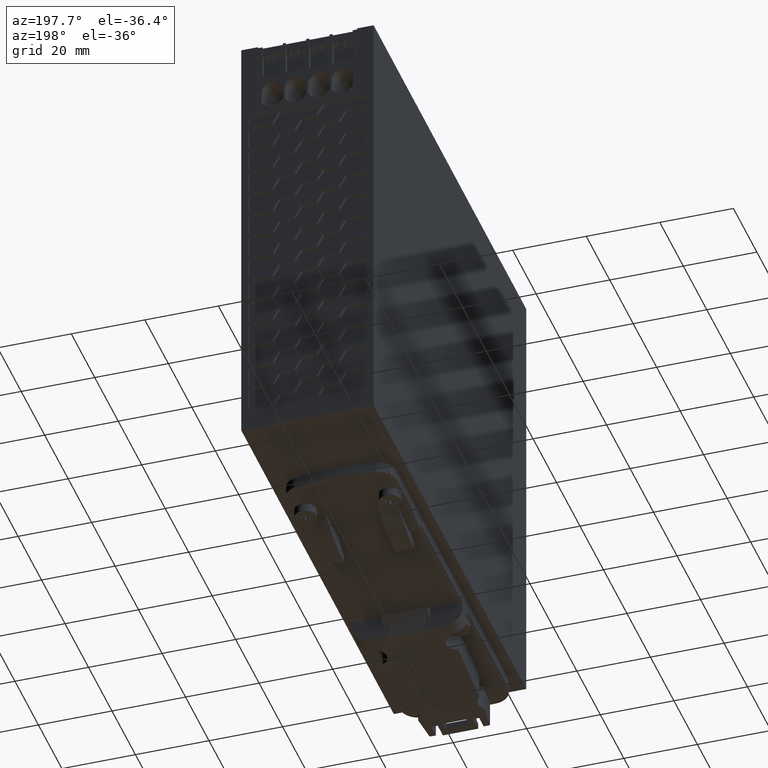
[diagram: clean part render]
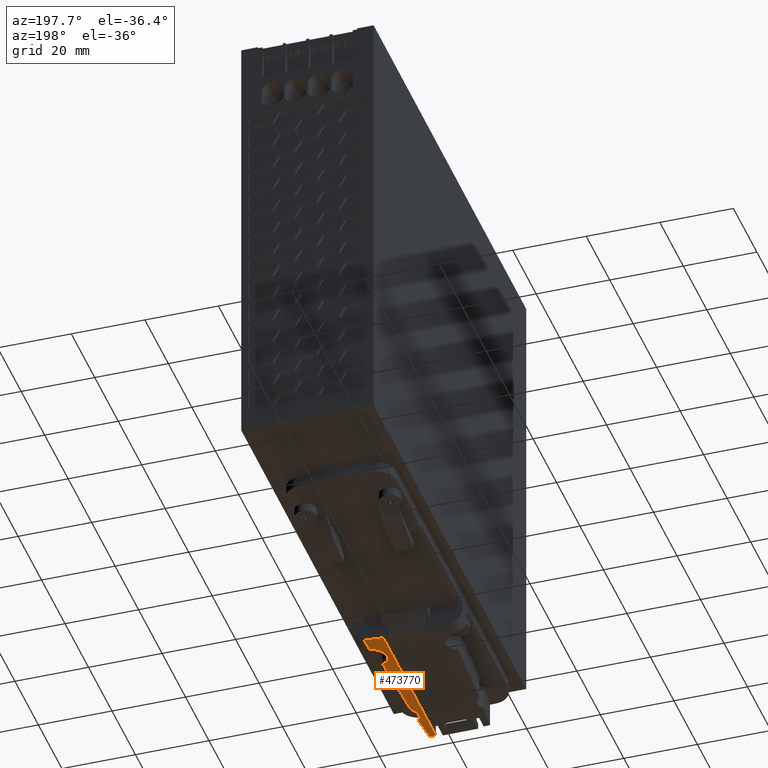
[diagram: same view with one face highlighted and labeled with its STEP entity id]
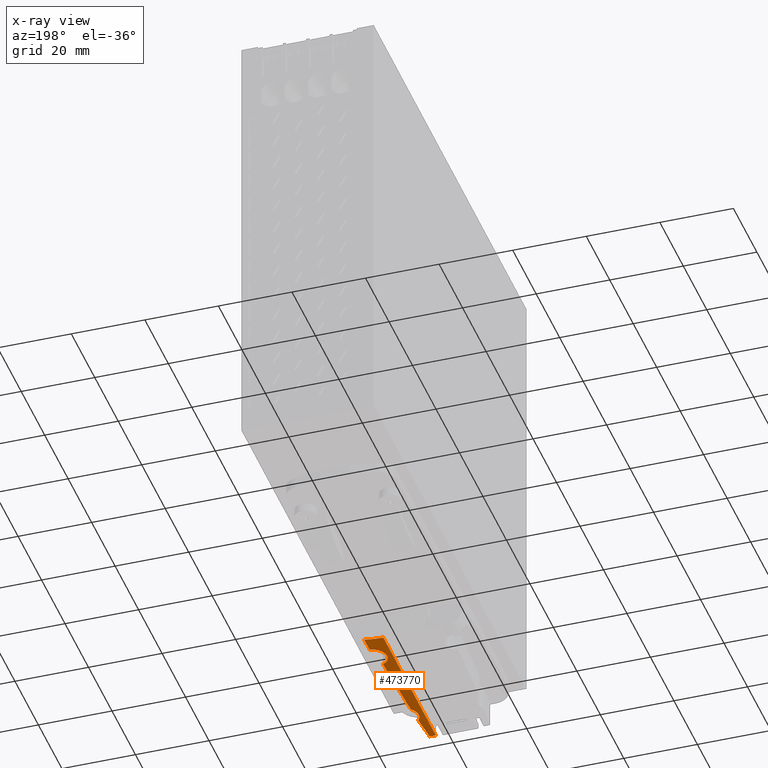
[diagram: x-ray of the same camera — body ghosted, the highlighted face saturated]
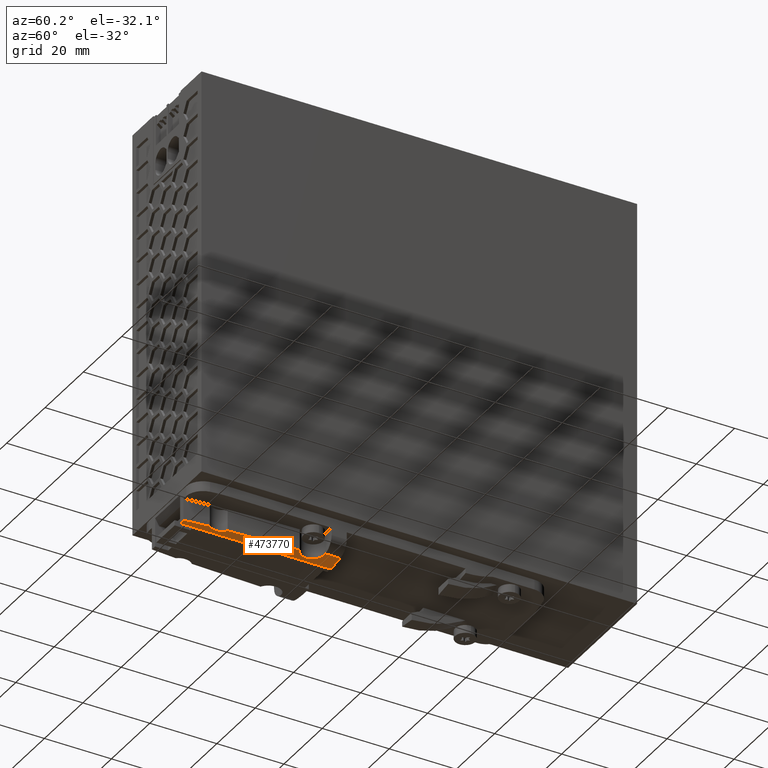
[diagram: same view with one face highlighted and labeled with its STEP entity id]
A machine part, auxiliary view. The second image highlights one B-rep face of the part: STEP entity #473770.
The next image is the same camera in x-ray: the body ghosted, the highlighted face saturated — about 0% of this face is hidden behind the body in this view.
A second angle (auxiliary view) of the same face is appended — the face is thin or edge-on in the first view.
In plain terms, the highlighted cylindrical surface (partial cylindrical patch) has radius 30 mm, axis along (-0, -1, -0).
Its self-contained STEP definition (entity closure, byte-faithful):
#405480=CARTESIAN_POINT('',(26.218370185678,0.198834120503022,
0.0491455297475056));
#405490=VERTEX_POINT('',#405480);
#405520=CARTESIAN_POINT('',(24.5018864248415,0.19881052430938,
30.0000000000007));
#405530=DIRECTION('',(1.37468202356329E-5,-0.999999999905513,
3.26265223505973E-55));
#405540=DIRECTION('',(0.999999999905513,1.37468202356329E-5,
5.47171506841959E-60));
#405550=AXIS2_PLACEMENT_3D('',#405520,#405530,#405540);
#405560=CIRCLE('',#405550,30.000000000001);
#405570=CARTESIAN_POINT('',(24.5018864248417,0.19881052430938,
-2.55795384873636E-13));
#405580=VERTEX_POINT('',#405570);
#405590=EDGE_CURVE('',#405580,#405490,#405560,.T.);
#408010=CARTESIAN_POINT('',(24.5012698799541,45.0488105200716,
-2.55795384873636E-13));
#408020=VERTEX_POINT('',#408010);
#408050=CARTESIAN_POINT('',(24.5012698799539,45.0488105200716,
30.0000000000007));
#408060=DIRECTION('',(1.37468202356329E-5,-0.999999999905513,
3.26265223505973E-55));
#408070=DIRECTION('',(0.999999999905513,1.37468202356329E-5,
5.47171506841959E-60));
#408080=AXIS2_PLACEMENT_3D('',#408050,#408060,#408070);
#408090=CIRCLE('',#408080,30.000000000001);
#408100=CARTESIAN_POINT('',(29.6935775717712,45.0488818977921,
0.452750706226169));
#408110=VERTEX_POINT('',#408100);
#408120=EDGE_CURVE('',#408020,#408110,#408090,.T.);
#421800=CARTESIAN_POINT('',(24.5018328122427,4.09881052394113,
-2.55795384873636E-13));
#421810=VERTEX_POINT('',#421800);
#421840=CARTESIAN_POINT('',(24.5012698799541,45.0488105200716,
-2.55795384873636E-13));
#421850=DIRECTION('',(1.37468202359625E-5,-0.999999999905512,
3.26265223505973E-55));
#421860=VECTOR('',#421850,1.);
#421870=LINE('',#421840,#421860);
#421880=EDGE_CURVE('',#408020,#421810,#421870,.T.);
#429710=CARTESIAN_POINT('',(24.501263006544,45.5488105200245,
-2.55795384873636E-13));
#429720=DIRECTION('',(1.37468202356329E-5,-0.999999999905513,
3.26265223505973E-55));
#429730=VECTOR('',#429720,1.);
#429740=LINE('',#429710,#429730);
#429750=EDGE_CURVE('',#421810,#405580,#429740,.T.);
#472130=CARTESIAN_POINT('',(24.5012630065438,45.5488105200245,
30.0000000000007));
#472140=DIRECTION('',(1.37468202356329E-5,-0.999999999905513,
3.26265223505973E-55));
#472150=DIRECTION('',(0.999999999905513,1.37468202356329E-5,
5.47171506841959E-60));
#472160=AXIS2_PLACEMENT_3D('',#472130,#472140,#472150);
#472170=CYLINDRICAL_SURFACE('',#472160,30.000000000001);
#472180=ORIENTED_EDGE('',*,*,#405590,.F.);
#472190=CARTESIAN_POINT('',(26.9137756242943,7.69252963810268,
0.097118975819285));
#472200=CARTESIAN_POINT('',(26.8095843097696,6.44253788304809,
0.0887134283499336));
#472210=CARTESIAN_POINT('',(26.589485029227,3.94351617555971,
0.0720504915823028));
#472220=CARTESIAN_POINT('',(26.3459732537765,1.44666011511352,
0.0564594458957117));
#472230=CARTESIAN_POINT('',(26.2183701856786,0.198834120506689,
0.0491455297473635));
#472240=B_SPLINE_CURVE_WITH_KNOTS('',3,(#472190,#472200,#472210,#472220,
#472230),.UNSPECIFIED.,.F.,.F.,(4,1,4),(0.,0.500000004837482,1.),
.UNSPECIFIED.);
#472250=CARTESIAN_POINT('',(26.9137756270188,7.69252967079008,
0.0971189758192281));
#472260=VERTEX_POINT('',#472250);
#472270=EDGE_CURVE('',#472260,#405490,#472240,.T.);
#472280=ORIENTED_EDGE('',*,*,#472270,.T.);
#472290=CARTESIAN_POINT('',(26.9137756019617,7.69252969831024,
0.0971189758193418));
#472300=CARTESIAN_POINT('',(26.8739130385792,7.73631069678197,
0.0939036756351186));
#472310=CARTESIAN_POINT('',(26.7963693357129,7.82594298508509,
0.0878095499217864));
#472320=CARTESIAN_POINT('',(26.6869650723956,7.96620489294315,
0.0796270698770343));
#472330=CARTESIAN_POINT('',(26.5847288848915,8.11198340384394,
0.0723444332745657));
#472340=CARTESIAN_POINT('',(26.4898841399838,8.26302566947396,
0.0659024635271521));
#472350=CARTESIAN_POINT('',(26.4027302694951,8.41893291467576,
0.0602491892642831));
#472360=CARTESIAN_POINT('',(26.3235509025415,8.57928457391847,
0.0553343423695765));
#472370=CARTESIAN_POINT('',(26.2526488203313,8.74350735367068,
0.0511118404714352));
#472380=CARTESIAN_POINT('',(26.1902479464473,8.91107513764879,
0.047535065638499));
#472390=CARTESIAN_POINT('',(26.136508154087,9.0815241557826,
0.0445593871399979));
#472400=CARTESIAN_POINT('',(26.0915555075984,9.25440213174835,
0.042144611818145));
#472410=CARTESIAN_POINT('',(26.0554829546517,9.42931154970763,
0.0402557949793732));
#472420=CARTESIAN_POINT('',(26.0283859250268,9.60576320011029,
0.0388656503860148));
#472430=CARTESIAN_POINT('',(26.010319913016,9.78332367725697,
0.0379526292183527));
#472440=CARTESIAN_POINT('',(26.0013250241573,9.96153242996019,
0.0375020124607772));
#472450=CARTESIAN_POINT('',(26.0014206550274,10.1399621924805,
0.0375070206863768));
#472460=CARTESIAN_POINT('',(26.0106044426827,10.3181433900977,
0.0379671978210183));
#472470=CARTESIAN_POINT('',(26.0288517678508,10.4956174504882,
0.0388900185927241));
#472480=CARTESIAN_POINT('',(26.0561146453703,10.6719351862527,
0.0402893899570529));
#472490=CARTESIAN_POINT('',(26.0923247904624,10.8466399445693,
0.042186517646627));
#472500=CARTESIAN_POINT('',(26.1373978428755,11.0193140293436,
0.0446093440127413));
#472510=CARTESIAN_POINT('',(26.1912248271979,11.189511107013,
0.0475918650166705));
#472520=CARTESIAN_POINT('',(26.2536774357405,11.3567940500078,
0.0511740883008258));
#472530=CARTESIAN_POINT('',(26.3245876930082,11.5207024605092,
0.0553999085576038));
#472540=CARTESIAN_POINT('',(26.4038016025628,11.6808578599155,
0.0603200216902167));
#472550=CARTESIAN_POINT('',(26.4911234501669,11.8368320196018,
0.0659877937834779));
#472560=CARTESIAN_POINT('',(26.5863218366116,11.9881905094585,
0.072458572655222));
#472570=CARTESIAN_POINT('',(26.6890917391312,12.1344467432543,
0.0797859213921583));
#472580=CARTESIAN_POINT('',(26.7990431504571,12.2750805218822,
0.0880188143213729));
#472590=CARTESIAN_POINT('',(26.9158279149279,12.4097201461551,
0.0972089630390656));
#472600=CARTESIAN_POINT('',(27.039085617746,12.5380183168411,
0.107406910495087));
#472610=CARTESIAN_POINT('',(27.1685531098209,12.6597606716206,
0.11867023817382));
#472620=CARTESIAN_POINT('',(27.2588026696865,12.7363837141261,
0.12692515501243));
#472630=CARTESIAN_POINT('',(27.3048407894873,12.7735050018734,
0.131245795124471));
#472640=B_SPLINE_CURVE_WITH_KNOTS('',3,(#472290,#472300,#472310,#472320,
#472330,#472340,#472350,#472360,#472370,#472380,#472390,#472400,#472410,
#472420,#472430,#472440,#472450,#472460,#472470,#472480,#472490,#472500,
#472510,#472520,#472530,#472540,#472550,#472560,#472570,#472580,#472590,
#472600,#472610,#472620,#472630),.UNSPECIFIED.,.F.,.F.,(4,1,1,1,1,1,1,1,
1,1,1,1,1,1,1,1,1,1,1,1,1,1,1,1,1,1,1,1,1,1,1,1,4),(0.,0.031152875728343
,0.062317093445257,0.093515113646066,0.124734656762142,0.156038136264314
,0.187359320317569,0.218683665843987,0.249998709462946,0.281278198630462
,0.312549876141662,0.343811590244453,0.375068674385844,0.406301044391676
,0.437538682573419,0.468772984898006,0.500002013927558,0.531233630880322
,0.562464642698144,0.593697065165036,0.624933602414618,0.656190011761566
,0.687451027834417,0.718722046596536,0.750000974482443,0.781315890177134
,0.812640199442448,0.843961403440287,0.875264909853168,0.906484539462629
,0.937682662759671,0.968846998159528,1.),.UNSPECIFIED.);
#472650=CARTESIAN_POINT('',(27.3048407900038,12.7735050022922,
0.131245795154342));
#472660=VERTEX_POINT('',#472650);
#472670=EDGE_CURVE('',#472260,#472660,#472640,.T.);
#472680=ORIENTED_EDGE('',*,*,#472670,.F.);
#472690=CARTESIAN_POINT('',(28.2357244112667,33.7857341003012,
0.233323904833924));
#472700=CARTESIAN_POINT('',(28.2198812613401,32.9094144879281,
0.231334833045736));
#472710=CARTESIAN_POINT('',(28.1824556578638,31.1568731499482,
0.226661551313413));
#472720=CARTESIAN_POINT('',(28.1091031168048,28.5284801966004,
0.217665717972039));
#472730=CARTESIAN_POINT('',(28.0185370941437,25.9005861489469,
0.206812945509284));
#472740=CARTESIAN_POINT('',(27.9107634772597,23.2733423620739,
0.19426305779993));
#472750=CARTESIAN_POINT('',(27.7857862197248,20.6468673484488,
0.180205162220062));
#472760=CARTESIAN_POINT('',(27.6436121483921,18.0212807075947,
0.164858488850882));
#472770=CARTESIAN_POINT('',(27.4842490500393,15.3967318565973,
0.148471519087593));
#472780=CARTESIAN_POINT('',(27.3665518904643,13.647776455762,
0.137038395468295));
#472790=CARTESIAN_POINT('',(27.3048407900088,12.7735050027357,
0.131245795149567));
#472800=B_SPLINE_CURVE_WITH_KNOTS('',3,(#472690,#472700,#472710,#472720,
#472730,#472740,#472750,#472760,#472770,#472780,#472790),.UNSPECIFIED.,
.F.,.F.,(4,1,1,1,1,1,1,1,4),(0.,0.124999077879369,0.24999859071467,
0.3749991528203,0.49999991536043,0.625000702189714,0.750001301312605,
0.875000866679188,1.),.UNSPECIFIED.);
#472810=CARTESIAN_POINT('',(28.2357244112665,33.7857341003012,
0.233323904833867));
#472820=VERTEX_POINT('',#472810);
#472830=EDGE_CURVE('',#472820,#472660,#472800,.T.);
#472840=ORIENTED_EDGE('',*,*,#472830,.T.);
#472850=CARTESIAN_POINT('',(28.2357244112665,33.7857341003012,
0.233323904833952));
#472860=CARTESIAN_POINT('',(28.1889194871403,33.8038880297656,
0.227452148054795));
#472870=CARTESIAN_POINT('',(28.0960345213654,33.8422326385583,
0.216024049267531));
#472880=CARTESIAN_POINT('',(27.9591732638265,33.9057609040428,
0.199829370563009));
#472890=CARTESIAN_POINT('',(27.8250323332094,33.9752052359897,
0.184575179267824));
#472900=CARTESIAN_POINT('',(27.6937838391894,34.050506575787,
0.17024153585956));
#472910=CARTESIAN_POINT('',(27.5657408950997,34.1315229885501,
0.156821258494574));
#472920=CARTESIAN_POINT('',(27.4411550432725,34.2181281602963,
0.144296708270929));
#472930=CARTESIAN_POINT('',(27.3203767012574,34.3101005806275,
0.132656406525058));
#472940=CARTESIAN_POINT('',(27.2036818973229,34.4072379340722,
0.12187806201058));
#472950=CARTESIAN_POINT('',(27.0913037220519,34.5093493271477,
0.111933051188203));
#472960=CARTESIAN_POINT('',(26.9834698415256,34.6162237106486,
0.102790595465024));
#472970=CARTESIAN_POINT('',(26.8803543033275,34.7276919804947,
0.0944147166020741));
#472980=CARTESIAN_POINT('',(26.782175769243,34.8435191918806,
0.0867725607227783));
#472990=CARTESIAN_POINT('',(26.6891094448812,34.9634972086308,
0.0798278050927479));
#473000=CARTESIAN_POINT('',(26.601321385086,35.0874130574624,
0.0735437619323136));
#473010=CARTESIAN_POINT('',(26.5189664258534,35.2150575880936,
0.0678840648079415));
#473020=CARTESIAN_POINT('',(26.442186608855,35.3462227290459,
0.0628126163389311));
#473030=CARTESIAN_POINT('',(26.3711476905453,35.48064674294,
0.0582966616274803));
#473040=CARTESIAN_POINT('',(26.3059928880432,35.6180717049709,
0.0543035963238765));
#473050=CARTESIAN_POINT('',(26.2468652747233,35.7582031054442,
0.0508031693223359));
#473060=CARTESIAN_POINT('',(26.1938748127775,35.9007840522466,
0.0477656161839093));
#473070=CARTESIAN_POINT('',(26.1471224482714,36.0455492865081,
0.0451638361267328));
#473080=CARTESIAN_POINT('',(26.1066986578789,36.1922259446126,
0.0429732637344387));
#473090=CARTESIAN_POINT('',(26.0726844022132,36.3405267423218,
0.0411724973946832));
#473100=CARTESIAN_POINT('',(26.0451563051777,36.4901080215342,
0.0397434735479578));
#473110=CARTESIAN_POINT('',(26.0241578242735,36.640683261643,
0.0386705042777464));
#473120=CARTESIAN_POINT('',(26.0097193731301,36.7919660786987,
0.0379412892605728));
#473130=CARTESIAN_POINT('',(26.0018597421873,36.9437336731158,
0.0375473542478062));
#473140=CARTESIAN_POINT('',(26.0005938575736,37.0956602167701,
0.0374841740494105));
#473150=CARTESIAN_POINT('',(26.0059183528079,37.2474592070062,
0.0377508105983111));
#473160=CARTESIAN_POINT('',(26.0178171106426,37.3988445603015,
0.0383498966648119));
#473170=CARTESIAN_POINT('',(26.0362689186317,37.5495698425585,
0.0392882576587397));
#473180=CARTESIAN_POINT('',(26.0612235171643,37.6992598542261,
0.040575382962345));
#473190=CARTESIAN_POINT('',(26.0926196623338,37.8476344397045,
0.0422244147430604));
#473200=CARTESIAN_POINT('',(26.1303839784365,37.9944174791938,
0.0442516075349317));
#473210=CARTESIAN_POINT('',(26.1744639499485,38.1394229388838,
0.0466782998076098));
#473220=CARTESIAN_POINT('',(26.2247840680523,38.2824018932243,
0.0495280463235588));
#473230=CARTESIAN_POINT('',(26.2812521312157,38.4230838208225,
0.0528270356010694));
#473240=CARTESIAN_POINT('',(26.3437637587285,38.5612021601477,
0.0566037550667033));
#473250=CARTESIAN_POINT('',(26.4121902648854,38.6964727864032,
0.0608881586059624));
#473260=CARTESIAN_POINT('',(26.4865144709905,38.8288452493627,
0.0657196728732004));
#473270=CARTESIAN_POINT('',(26.5666253736844,38.9580516560969,
0.0711350260033612));
#473280=CARTESIAN_POINT('',(26.6523963813963,39.083828189333,
0.0771720943364471));
#473290=CARTESIAN_POINT('',(26.7435383868135,39.2057354434272,
0.083858252333556));
#473300=CARTESIAN_POINT('',(26.8399193397431,39.3236005169139,
0.0912325738736115));
#473310=CARTESIAN_POINT('',(26.9413604476897,39.4371912099374,
0.0993318313656744));
#473320=CARTESIAN_POINT('',(27.0476692759176,39.5462851520802,
0.108191788146797));
#473330=CARTESIAN_POINT('',(27.1585877340223,39.6506187714696,
0.117842187371593));
#473340=CARTESIAN_POINT('',(27.2739743151178,39.7500643380259,
0.128321797044009));
#473350=CARTESIAN_POINT('',(27.3936123085887,39.8444218866217,
0.139662543353609));
#473360=CARTESIAN_POINT('',(27.5172732690596,39.9335039726626,
0.151893604756964));
#473370=CARTESIAN_POINT('',(27.6446310230795,40.0170792851033,
0.165031703989968));
#473380=CARTESIAN_POINT('',(27.7753952407486,40.0949738887027,
0.179093563332799));
#473390=CARTESIAN_POINT('',(27.909303622958,40.1670501589657,
0.194095373844846));
#473400=CARTESIAN_POINT('',(28.0460852133601,40.233185522049,
0.210048589674471));
#473410=CARTESIAN_POINT('',(28.1855081476344,40.2932830235523,
0.226965822864315));
#473420=CARTESIAN_POINT('',(28.3269126442289,40.3470954005819,
0.244801908418083));
#473430=CARTESIAN_POINT('',(28.4700044639704,40.394591580093,
0.263546739116407));
#473440=CARTESIAN_POINT('',(28.6145000237915,40.4357601346377,
0.283186043868994));
#473450=CARTESIAN_POINT('',(28.7605154425602,40.4706658517149,
0.303759791894976));
#473460=CARTESIAN_POINT('',(28.9075832296247,40.4992227544807,
0.325223409737305));
#473470=CARTESIAN_POINT('',(29.055420551999,40.5214205481971,
0.347550609587671));
#473480=CARTESIAN_POINT('',(29.2037172451035,40.5372602868392,
0.370705181642364));
#473490=CARTESIAN_POINT('',(29.3523812497894,40.5467622698783,
0.394681362962331));
#473500=CARTESIAN_POINT('',(29.4515636081231,40.5488755986212,
0.411189096522406));
#473510=CARTESIAN_POINT('',(29.5011222972947,40.5488792454523,
0.419565683018305));
#473520=B_SPLINE_CURVE_WITH_KNOTS('',3,(#472850,#472860,#472870,#472880,
#472890,#472900,#472910,#472920,#472930,#472940,#472950,#472960,#472970,
#472980,#472990,#473000,#473010,#473020,#473030,#473040,#473050,#473060,
#473070,#473080,#473090,#473100,#473110,#473120,#473130,#473140,#473150,
#473160,#473170,#473180,#473190,#473200,#473210,#473220,#473230,#473240,
#473250,#473260,#473270,#473280,#473290,#473300,#473310,#473320,#473330,
#473340,#473350,#473360,#473370,#473380,#473390,#473400,#473410,#473420,
#473430,#473440,#473450,#473460,#473470,#473480,#473490,#473500,#473510)
,.UNSPECIFIED.,.F.,.F.,(4,1,1,1,1,1,1,1,1,1,1,1,1,1,1,1,1,1,1,1,1,1,1,1,
1,1,1,1,1,1,1,1,1,1,1,1,1,1,1,1,1,1,1,1,1,1,1,1,1,1,1,1,1,1,1,1,1,1,1,1,
1,1,1,1,4),(0.,0.015588938562413,0.031180952169769,0.046789928565393,
0.062398091916321,0.078044030501374,0.093690197148677,0.109339087380772,
0.124987913658116,0.140621600120485,0.156255302961817,0.171883220636048,
0.187511119670475,0.203129845079016,0.218748583776169,0.234373518024304,
0.249998453786756,0.265635101910072,0.281271755584883,0.296906813588903,
0.312541868731323,0.328179951859426,0.343818032662487,0.359456533974913,
0.375095040871486,0.390713926340797,0.406332799582678,0.421951527248875,
0.437570254316269,0.453176899429138,0.468783550533951,0.484390204590959,
0.499996846557864,0.515575083322428,0.531153313080607,0.546731536823457,
0.562309773283,0.577895831506521,0.593481876588958,0.609067949783144,
0.624654042992193,0.640312433010437,0.655970832344772,0.671629306278094,
0.687287786905955,0.702969349453342,0.718650919523058,0.73433245794628,
0.750014002882002,0.765727669264486,0.781441341912041,0.797155221536164,
0.812869092994296,0.828569820981787,0.844270553932506,0.859970422466017,
0.875670250048597,0.891242125704641,0.906814034453017,0.922388903173233,
0.937963561231564,0.953477401195974,0.968993407535847,0.984498297229872,
1.),.UNSPECIFIED.);
#473530=CARTESIAN_POINT('',(29.5011223026548,40.5488792454603,
0.419565683814));
#473540=VERTEX_POINT('',#473530);
#473550=EDGE_CURVE('',#472820,#473540,#473520,.T.);
#473560=ORIENTED_EDGE('',*,*,#473550,.F.);
#473570=CARTESIAN_POINT('',(24.501331740645,40.5488105204968,
30.0000000000007));
#473580=DIRECTION('',(1.37468202356329E-5,-0.999999999905513,
3.26265223505973E-55));
#473590=DIRECTION('',(0.999999999905513,1.37468202356329E-5,
5.47171506841959E-60));
#473600=AXIS2_PLACEMENT_3D('',#473570,#473580,#473590);
#473610=CIRCLE('',#473600,30.000000000001);
#473620=CARTESIAN_POINT('',(29.6936394324622,40.5488818982173,
0.452750706226169));
#473630=VERTEX_POINT('',#473620);
#473640=EDGE_CURVE('',#473540,#473630,#473610,.T.);
#473650=ORIENTED_EDGE('',*,*,#473640,.F.);
#473660=CARTESIAN_POINT('',(29.6935775717712,45.0488818977921,
0.452750706226169));
#473670=DIRECTION('',(1.37468202360145E-5,-0.999999999905512,
3.26265223505973E-55));
#473680=VECTOR('',#473670,1.);
#473690=LINE('',#473660,#473680);
#473700=EDGE_CURVE('',#408110,#473630,#473690,.T.);
#473710=ORIENTED_EDGE('',*,*,#473700,.T.);
#473720=ORIENTED_EDGE('',*,*,#408120,.T.);
#473730=ORIENTED_EDGE('',*,*,#421880,.F.);
#473740=ORIENTED_EDGE('',*,*,#429750,.F.);
#473750=EDGE_LOOP('',(#473740,#473730,#473720,#473710,#473650,#473560,
#472840,#472680,#472280,#472180));
#473760=FACE_OUTER_BOUND('',#473750,.T.);
#473770=ADVANCED_FACE('',(#473760),#472170,.T.);